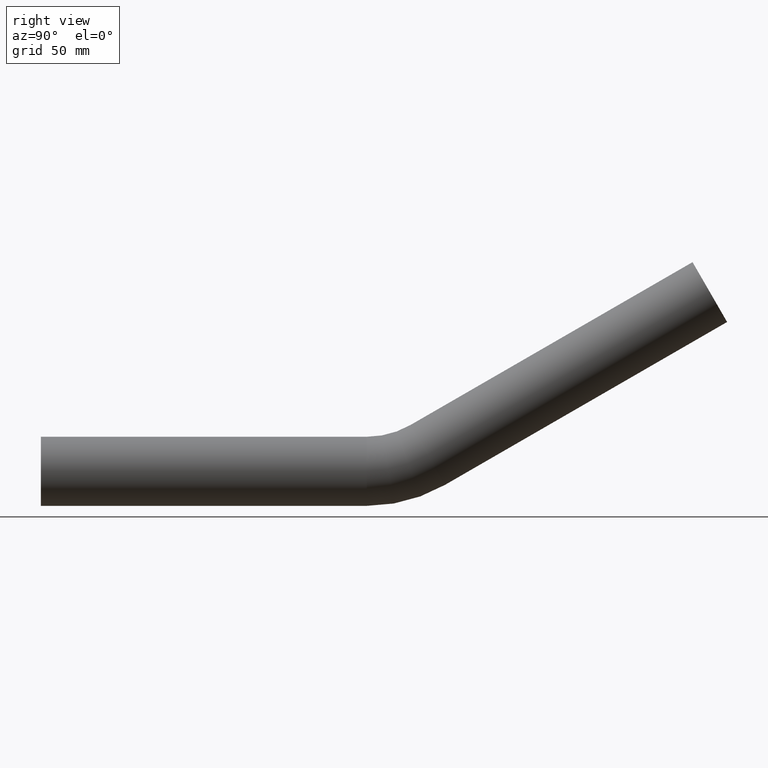
[diagram: clean part render]
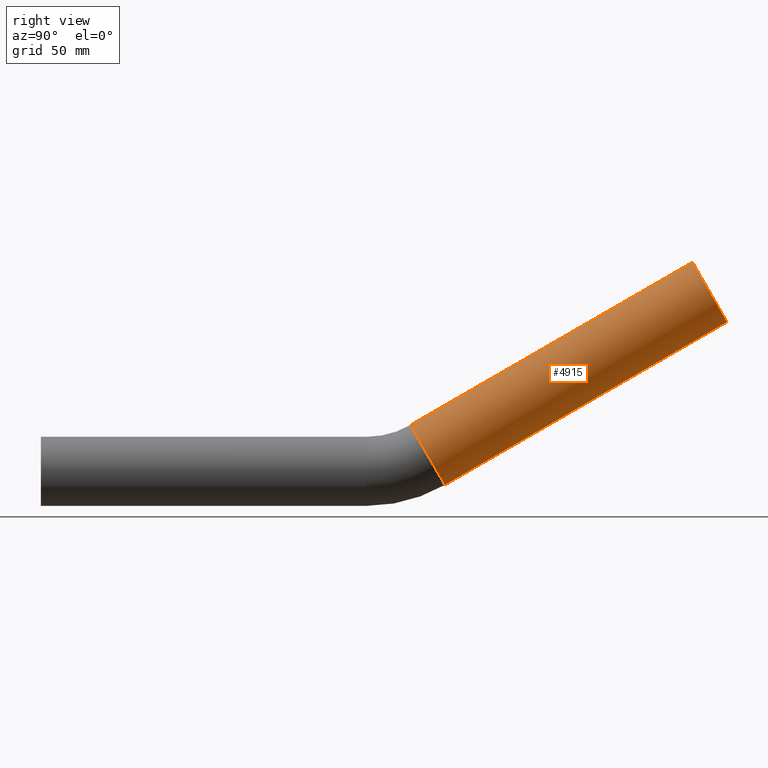
[diagram: same view with one face highlighted and labeled with its STEP entity id]
A machine part, right view. The second image highlights one B-rep face of the part: STEP entity #4915.
In plain terms, the highlighted cylindrical surface (bore or boss wall) has radius 24.15 mm, axis along (0, 0.866, 0.5).
Its self-contained STEP definition (entity closure, byte-faithful):
#1218 = CIRCLE ( 'NONE', #7102, 24.14999999999999858 ) ;
#1700 = CYLINDRICAL_SURFACE ( 'NONE', #4408, 24.14999999999999858 ) ;
#2056 = CARTESIAN_POINT ( 'NONE',  ( 0.000000000000000000, 270.2470520370725922, 11.38784067832274083 ) ) ;
#2147 = DIRECTION ( 'NONE',  ( 0.000000000000000000, -0.5000000000000001110, 0.8660254037844383745 ) ) ;
#2546 = VERTEX_POINT ( 'NONE', #9928 ) ;
#3688 = CARTESIAN_POINT ( 'NONE',  ( 0.000000000000000000, 467.4817847381938805, 125.2613666968592838 ) ) ;
#4408 = AXIS2_PLACEMENT_3D ( 'NONE', #2056, #7330, #2147 ) ;
#4433 = CARTESIAN_POINT ( 'NONE',  ( 0.000000000000000000, 258.1720520370726035, 32.30235417971692868 ) ) ;
#4505 = FACE_OUTER_BOUND ( 'NONE', #4639, .T. ) ;
#4549 = DIRECTION ( 'NONE',  ( 0.000000000000000000, 0.8660254037844382635, 0.5000000000000006661 ) ) ;
#4592 = CARTESIAN_POINT ( 'NONE',  ( 0.000000000000000000, 270.2470520370725922, 11.38784067832274083 ) ) ;
#4639 = EDGE_LOOP ( 'NONE', ( #12481 ) ) ;
#4670 = DIRECTION ( 'NONE',  ( 0.000000000000000000, 0.8660254037844382635, 0.5000000000000006661 ) ) ;
#4704 = EDGE_CURVE ( 'NONE', #7030, #7030, #1218, .T. ) ;
#4714 = DIRECTION ( 'NONE',  ( 0.000000000000000000, -0.5000000000000000000, 0.8660254037844387076 ) ) ;
#4915 = ADVANCED_FACE ( 'NONE', ( #11351, #4505 ), #1700, .T. ) ;
#7030 = VERTEX_POINT ( 'NONE', #4433 ) ;
#7102 = AXIS2_PLACEMENT_3D ( 'NONE', #4592, #4549, #7725 ) ;
#7330 = DIRECTION ( 'NONE',  ( 0.000000000000000000, 0.8660254037844381525, 0.5000000000000008882 ) ) ;
#7725 = DIRECTION ( 'NONE',  ( 0.000000000000000000, -0.5000000000000001110, 0.8660254037844383745 ) ) ;
#9246 = AXIS2_PLACEMENT_3D ( 'NONE', #3688, #4670, #4714 ) ;
#9324 = EDGE_CURVE ( 'NONE', #2546, #2546, #10464, .T. ) ;
#9928 = CARTESIAN_POINT ( 'NONE',  ( 0.000000000000000000, 455.4067847381938918, 146.1758801982534806 ) ) ;
#10464 = CIRCLE ( 'NONE', #9246, 24.15000000000000568 ) ;
#10487 = ORIENTED_EDGE ( 'NONE', *, *, #4704, .T. ) ;
#11351 = FACE_OUTER_BOUND ( 'NONE', #11536, .T. ) ;
#11536 = EDGE_LOOP ( 'NONE', ( #10487 ) ) ;
#12481 = ORIENTED_EDGE ( 'NONE', *, *, #9324, .F. ) ;